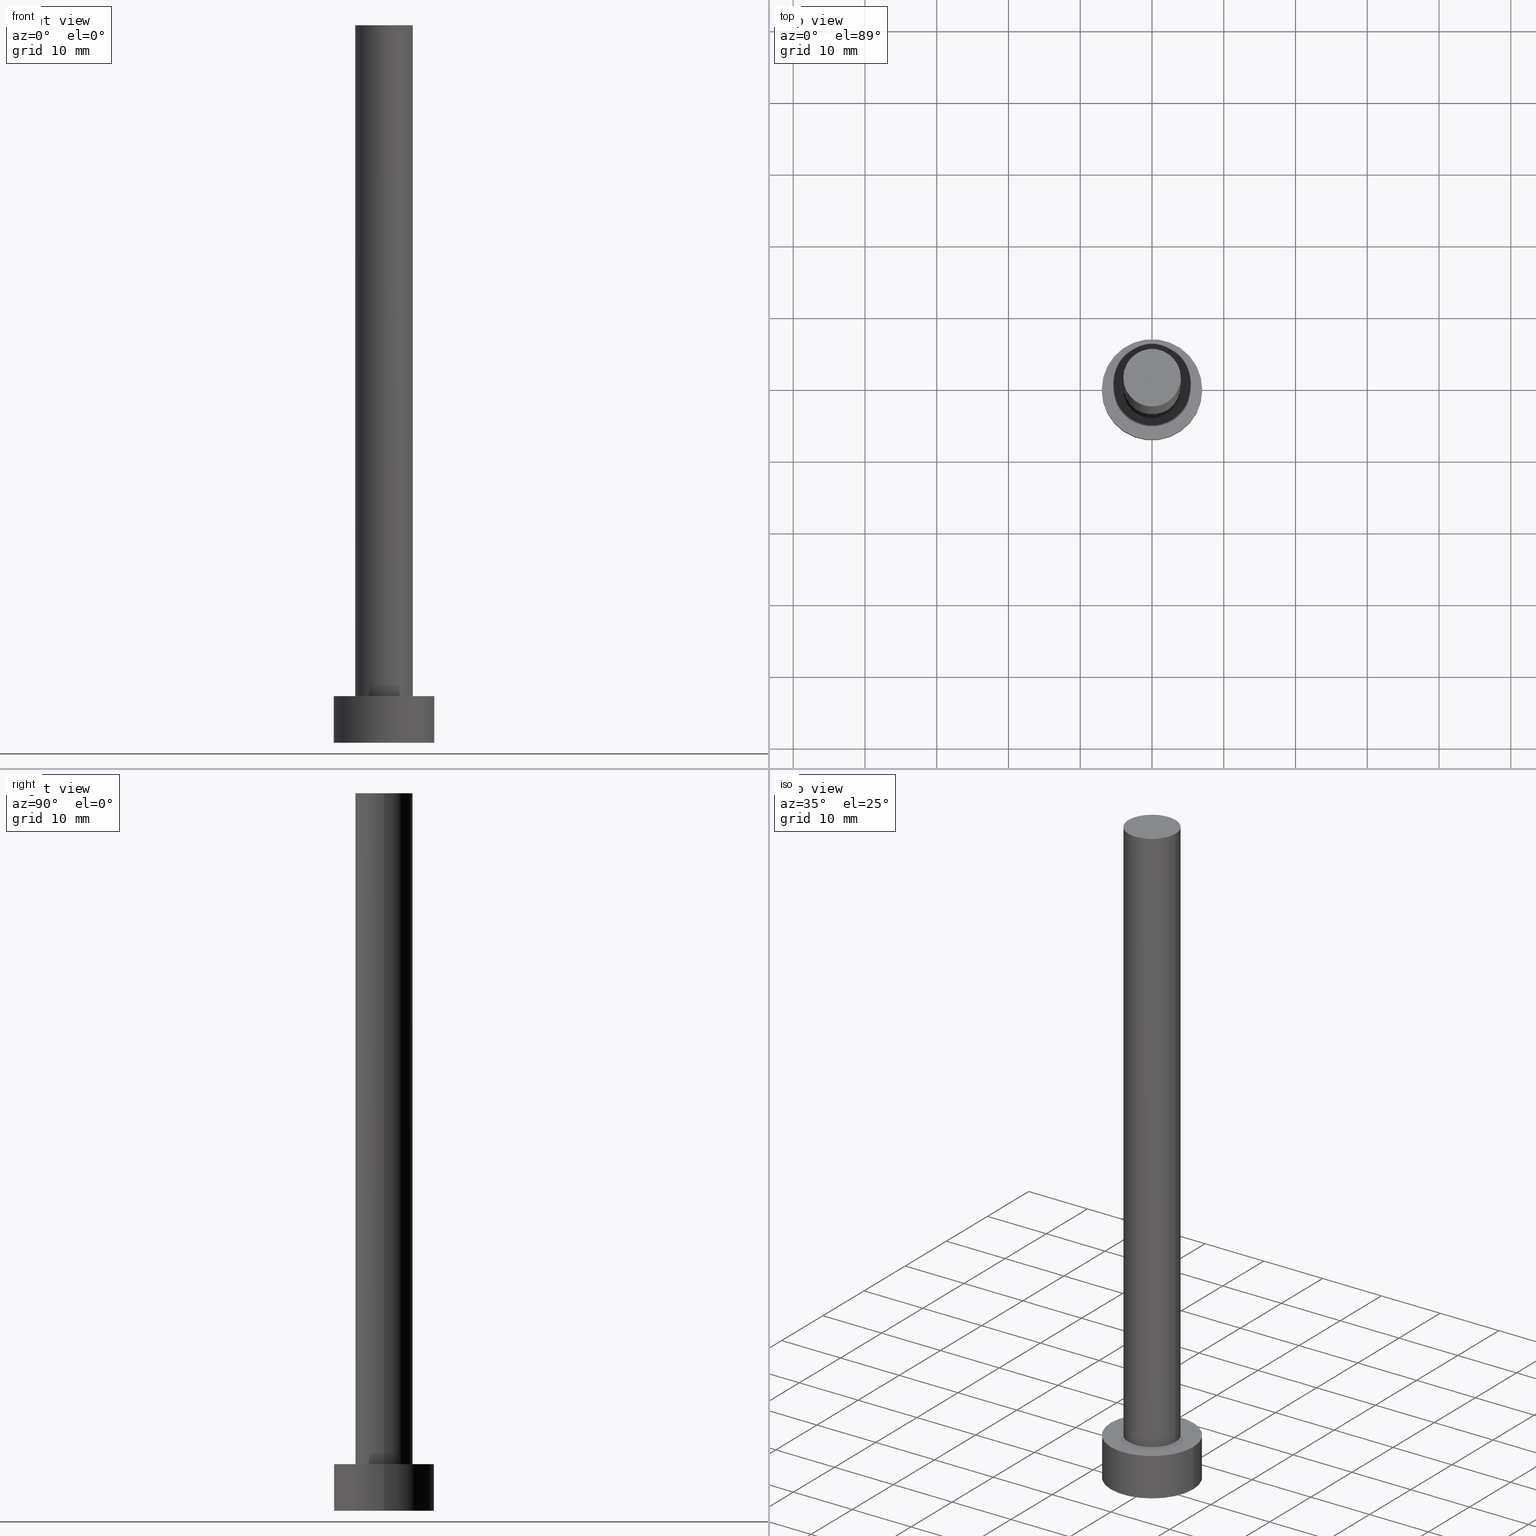
[diagram: canonical four-view strip — front | top / right | iso, engineering-drawing reading convention]
A machine part, canonical four-view strip (front | top / right | iso — engineering-drawing reading convention). The complete STEP part file that produces these views, byte-faithful:
ISO-10303-21;
HEADER;
FILE_DESCRIPTION (( 'STEP AP203' ),
    '1' );
FILE_NAME ('9355.STEP',
    '2023-02-13T14:45:15',
    ( '' ),
    ( '' ),
    'SwSTEP 2.0',
    'SolidWorks 2019',
    '' );
FILE_SCHEMA (( 'CONFIG_CONTROL_DESIGN' ));
ENDSEC;

DATA;
#1 = LOCAL_TIME ( 15, 45, 15.00000000000000000, #176 ) ;
#2 = CALENDAR_DATE ( 2023, 13, 2 ) ;
#3 = EDGE_LOOP ( 'NONE', ( #103, #54 ) ) ;
#4 =( NAMED_UNIT ( * ) SI_UNIT ( $, .STERADIAN. ) SOLID_ANGLE_UNIT ( ) );
#5 = PRODUCT ( '9355', '9355', '', ( #130 ) ) ;
#6 = ORIENTED_EDGE ( 'NONE', *, *, #198, .T. ) ;
#7 = APPROVAL ( #65, 'NEUR�EN�' ) ;
#8 = PERSON_AND_ORGANIZATION ( #70, #17 ) ;
#9 = DIRECTION ( 'NONE',  ( -0.000000000000000000, -0.000000000000000000, -1.000000000000000000 ) ) ;
#10 = ORIENTED_EDGE ( 'NONE', *, *, #61, .F. ) ;
#11 = APPROVAL_PERSON_ORGANIZATION ( #8, #204, #94 ) ;
#12 = ORIENTED_EDGE ( 'NONE', *, *, #61, .T. ) ;
#13 = CC_DESIGN_PERSON_AND_ORGANIZATION_ASSIGNMENT ( #143, #109, ( #111 ) ) ;
#14 = PERSON_AND_ORGANIZATION ( #70, #17 ) ;
#15 = CARTESIAN_POINT ( 'NONE',  ( 0.000000000000000000, 0.000000000000000000, 100.0000000000000000 ) ) ;
#16 = CC_DESIGN_PERSON_AND_ORGANIZATION_ASSIGNMENT ( #159, #236, ( #212 ) ) ;
#17 = ORGANIZATION ( 'NEUR�EN�', 'NEUR�EN�', '' ) ;
#18 = APPROVAL_ROLE ( '' ) ;
#19 = CARTESIAN_POINT ( 'NONE',  ( 4.000000000000000000, 4.898587196589412829E-16, 100.0000000000000000 ) ) ;
#20 = APPROVAL_DATE_TIME ( #116, #229 ) ;
#21 = FACE_OUTER_BOUND ( 'NONE', #105, .T. ) ;
#22 = VECTOR ( 'NONE', #115, 1000.000000000000000 ) ;
#23 = CIRCLE ( 'NONE', #126, 7.000000000000000000 ) ;
#24 = PERSON_AND_ORGANIZATION ( #70, #17 ) ;
#25 = CYLINDRICAL_SURFACE ( 'NONE', #138, 7.000000000000000000 ) ;
#26 = APPLICATION_CONTEXT ( 'configuration controlled 3d designs of mechanical parts and assemblies' ) ;
#27 = CIRCLE ( 'NONE', #175, 4.000000000000000000 ) ;
#28 = CARTESIAN_POINT ( 'NONE',  ( -4.000000000000000000, 0.000000000000000000, 100.0000000000000000 ) ) ;
#29 = DIRECTION ( 'NONE',  ( 0.000000000000000000, 0.000000000000000000, 1.000000000000000000 ) ) ;
#30 = DIRECTION ( 'NONE',  ( 0.000000000000000000, 0.000000000000000000, 1.000000000000000000 ) ) ;
#31 = CIRCLE ( 'NONE', #243, 7.000000000000000000 ) ;
#32 = CC_DESIGN_PERSON_AND_ORGANIZATION_ASSIGNMENT ( #185, #254, ( #212 ) ) ;
#33 = FACE_OUTER_BOUND ( 'NONE', #173, .T. ) ;
#34 = CALENDAR_DATE ( 2023, 13, 2 ) ;
#35 = EDGE_LOOP ( 'NONE', ( #141, #245 ) ) ;
#36 = PERSON_AND_ORGANIZATION ( #70, #17 ) ;
#37 = CYLINDRICAL_SURFACE ( 'NONE', #95, 7.000000000000000000 ) ;
#38 = LINE ( 'NONE', #102, #92 ) ;
#39 = VECTOR ( 'NONE', #9, 1000.000000000000000 ) ;
#40 = DIRECTION ( 'NONE',  ( 0.000000000000000000, 0.000000000000000000, 1.000000000000000000 ) ) ;
#41 = ORIENTED_EDGE ( 'NONE', *, *, #240, .F. ) ;
#42 =( GEOMETRIC_REPRESENTATION_CONTEXT ( 3 ) GLOBAL_UNCERTAINTY_ASSIGNED_CONTEXT ( ( #64 ) ) GLOBAL_UNIT_ASSIGNED_CONTEXT ( ( #172, #174, #4 ) ) REPRESENTATION_CONTEXT ( 'NONE', 'WORKASPACE' ) );
#43 = VERTEX_POINT ( 'NONE', #161 ) ;
#44 = ORIENTED_EDGE ( 'NONE', *, *, #46, .T. ) ;
#45 = ORIENTED_EDGE ( 'NONE', *, *, #240, .T. ) ;
#46 = EDGE_CURVE ( 'NONE', #89, #43, #248, .T. ) ;
#47 = ORIENTED_EDGE ( 'NONE', *, *, #46, .F. ) ;
#48 = APPLICATION_CONTEXT ( 'configuration controlled 3d designs of mechanical parts and assemblies' ) ;
#49 = DIRECTION ( 'NONE',  ( -1.000000000000000000, 0.000000000000000000, 0.000000000000000000 ) ) ;
#50 = CARTESIAN_POINT ( 'NONE',  ( 0.000000000000000000, 0.000000000000000000, 0.000000000000000000 ) ) ;
#51 = DIRECTION ( 'NONE',  ( 0.000000000000000000, 0.000000000000000000, 1.000000000000000000 ) ) ;
#52 = AXIS2_PLACEMENT_3D ( 'NONE', #253, #239, #59 ) ;
#53 = SECURITY_CLASSIFICATION_LEVEL ( 'unclassified' ) ;
#54 = ORIENTED_EDGE ( 'NONE', *, *, #120, .F. ) ;
#55 = DIRECTION ( 'NONE',  ( 1.000000000000000000, 0.000000000000000000, 0.000000000000000000 ) ) ;
#56 = FACE_BOUND ( 'NONE', #35, .T. ) ;
#57 = DIRECTION ( 'NONE',  ( -1.000000000000000000, 0.000000000000000000, 0.000000000000000000 ) ) ;
#58 = CC_DESIGN_PERSON_AND_ORGANIZATION_ASSIGNMENT ( #14, #139, ( #160 ) ) ;
#59 = DIRECTION ( 'NONE',  ( 1.000000000000000000, 0.000000000000000000, -0.000000000000000000 ) ) ;
#60 = DIRECTION ( 'NONE',  ( 0.000000000000000000, 0.000000000000000000, 1.000000000000000000 ) ) ;
#61 = EDGE_CURVE ( 'NONE', #153, #89, #247, .T. ) ;
#62 = APPROVAL_DATE_TIME ( #171, #7 ) ;
#63 = AXIS2_PLACEMENT_3D ( 'NONE', #156, #30, #133 ) ;
#64 = UNCERTAINTY_MEASURE_WITH_UNIT (LENGTH_MEASURE( 1.000000000000000082E-05 ), #172, 'distance_accuracy_value', 'NONE');
#65 = APPROVAL_STATUS ( 'not_yet_approved' ) ;
#66 = DIRECTION ( 'NONE',  ( 1.000000000000000000, 0.000000000000000000, 0.000000000000000000 ) ) ;
#67 = EDGE_LOOP ( 'NONE', ( #215, #131, #129, #108 ) ) ;
#68 = AXIS2_PLACEMENT_3D ( 'NONE', #78, #255, #55 ) ;
#69 = CALENDAR_DATE ( 2023, 13, 2 ) ;
#70 = PERSON ( 'NEUR�EN�', 'NEUR�EN�', 'NEUR�EN�', ('NEUR�EN�'), ('NEUR�EN�'), ('NEUR�EN�') ) ;
#71 = DIRECTION ( 'NONE',  ( 1.000000000000000000, 0.000000000000000000, 0.000000000000000000 ) ) ;
#72 = APPLICATION_PROTOCOL_DEFINITION ( 'international standard', 'config_control_design', 1994, #26 ) ;
#73 = EDGE_CURVE ( 'NONE', #136, #43, #27, .T. ) ;
#74 = CARTESIAN_POINT ( 'NONE',  ( 0.000000000000000000, 0.000000000000000000, 0.000000000000000000 ) ) ;
#75 = CARTESIAN_POINT ( 'NONE',  ( 0.000000000000000000, 0.000000000000000000, 100.0000000000000000 ) ) ;
#76 = CARTESIAN_POINT ( 'NONE',  ( -7.000000000000000000, 0.000000000000000000, 6.500000000000000000 ) ) ;
#77 = COORDINATED_UNIVERSAL_TIME_OFFSET ( 1, 0, .AHEAD. ) ;
#78 = CARTESIAN_POINT ( 'NONE',  ( 0.000000000000000000, 0.000000000000000000, 6.500000000000000000 ) ) ;
#79 = CYLINDRICAL_SURFACE ( 'NONE', #183, 4.000000000000000000 ) ;
#80 = ORIENTED_EDGE ( 'NONE', *, *, #73, .T. ) ;
#81 = PLANE ( 'NONE',  #52 ) ;
#82 = DIRECTION ( 'NONE',  ( -1.000000000000000000, 0.000000000000000000, 0.000000000000000000 ) ) ;
#83 = CARTESIAN_POINT ( 'NONE',  ( 7.000000000000000000, 8.572527594031471218E-16, 6.500000000000000000 ) ) ;
#84 = CARTESIAN_POINT ( 'NONE',  ( 0.000000000000000000, 0.000000000000000000, 6.500000000000000000 ) ) ;
#85 = EDGE_CURVE ( 'NONE', #178, #154, #31, .T. ) ;
#86 = ADVANCED_BREP_SHAPE_REPRESENTATION ( '9355', ( #122, #170 ), #42 ) ;
#87 = DESIGN_CONTEXT ( 'detailed design', #48, 'design' ) ;
#88 = CC_DESIGN_APPROVAL ( #229, ( #212 ) ) ;
#89 = VERTEX_POINT ( 'NONE', #28 ) ;
#90 = EDGE_CURVE ( 'NONE', #154, #242, #38, .T. ) ;
#91 = DIRECTION ( 'NONE',  ( 1.000000000000000000, 0.000000000000000000, 0.000000000000000000 ) ) ;
#92 = VECTOR ( 'NONE', #227, 1000.000000000000000 ) ;
#93 = ORIENTED_EDGE ( 'NONE', *, *, #235, .F. ) ;
#94 = APPROVAL_ROLE ( '' ) ;
#95 = AXIS2_PLACEMENT_3D ( 'NONE', #142, #113, #57 ) ;
#96 = CARTESIAN_POINT ( 'NONE',  ( 0.000000000000000000, 0.000000000000000000, 0.000000000000000000 ) ) ;
#97 = CYLINDRICAL_SURFACE ( 'NONE', #189, 4.000000000000000000 ) ;
#98 = EDGE_CURVE ( 'NONE', #89, #153, #124, .T. ) ;
#99 = LOCAL_TIME ( 15, 45, 15.00000000000000000, #179 ) ;
#100 = CARTESIAN_POINT ( 'NONE',  ( 0.000000000000000000, 0.000000000000000000, 6.500000000000000000 ) ) ;
#101 = ORIENTED_EDGE ( 'NONE', *, *, #90, .T. ) ;
#102 = CARTESIAN_POINT ( 'NONE',  ( -7.000000000000000000, 0.000000000000000000, 6.500000000000000000 ) ) ;
#103 = ORIENTED_EDGE ( 'NONE', *, *, #233, .F. ) ;
#104 = APPROVAL_STATUS ( 'not_yet_approved' ) ;
#105 = EDGE_LOOP ( 'NONE', ( #45, #181 ) ) ;
#106 = ADVANCED_FACE ( 'NONE', ( #205 ), #25, .T. ) ;
#107 = PERSON_AND_ORGANIZATION_ROLE ( 'design_owner' ) ;
#108 = ORIENTED_EDGE ( 'NONE', *, *, #90, .F. ) ;
#109 = PERSON_AND_ORGANIZATION_ROLE ( 'creator' ) ;
#110 = AXIS2_PLACEMENT_3D ( 'NONE', #84, #221, #121 ) ;
#111 = PRODUCT_DEFINITION ( 'NEZN�M�', '', #212, #87 ) ;
#112 = CARTESIAN_POINT ( 'NONE',  ( 0.000000000000000000, 0.000000000000000000, 100.0000000000000000 ) ) ;
#113 = DIRECTION ( 'NONE',  ( -0.000000000000000000, -0.000000000000000000, -1.000000000000000000 ) ) ;
#114 = ORIENTED_EDGE ( 'NONE', *, *, #98, .F. ) ;
#115 = DIRECTION ( 'NONE',  ( -0.000000000000000000, -0.000000000000000000, -1.000000000000000000 ) ) ;
#116 = DATE_AND_TIME ( #197, #224 ) ;
#117 = DIRECTION ( 'NONE',  ( 0.000000000000000000, 0.000000000000000000, 1.000000000000000000 ) ) ;
#118 = APPROVAL_ROLE ( '' ) ;
#119 = DATE_AND_TIME ( #2, #99 ) ;
#120 = EDGE_CURVE ( 'NONE', #230, #242, #192, .T. ) ;
#121 = DIRECTION ( 'NONE',  ( 1.000000000000000000, 0.000000000000000000, 0.000000000000000000 ) ) ;
#122 = MANIFOLD_SOLID_BREP ( 'P�idat vysunut�m3', #249 ) ;
#123 = CARTESIAN_POINT ( 'NONE',  ( 0.000000000000000000, 0.000000000000000000, 6.500000000000000000 ) ) ;
#124 = CIRCLE ( 'NONE', #132, 4.000000000000000000 ) ;
#125 = ORIENTED_EDGE ( 'NONE', *, *, #145, .T. ) ;
#126 = AXIS2_PLACEMENT_3D ( 'NONE', #96, #117, #201 ) ;
#127 = ADVANCED_FACE ( 'NONE', ( #137 ), #135, .F. ) ;
#128 = CARTESIAN_POINT ( 'NONE',  ( 0.000000000000000000, 0.000000000000000000, 100.0000000000000000 ) ) ;
#129 = ORIENTED_EDGE ( 'NONE', *, *, #120, .T. ) ;
#130 = MECHANICAL_CONTEXT ( 'NONE', #26, 'mechanical' ) ;
#131 = ORIENTED_EDGE ( 'NONE', *, *, #235, .T. ) ;
#132 = AXIS2_PLACEMENT_3D ( 'NONE', #128, #210, #91 ) ;
#133 = DIRECTION ( 'NONE',  ( 1.000000000000000000, 0.000000000000000000, 0.000000000000000000 ) ) ;
#134 = ORIENTED_EDGE ( 'NONE', *, *, #98, .T. ) ;
#135 = PLANE ( 'NONE',  #223 ) ;
#136 = VERTEX_POINT ( 'NONE', #211 ) ;
#137 = FACE_OUTER_BOUND ( 'NONE', #3, .T. ) ;
#138 = AXIS2_PLACEMENT_3D ( 'NONE', #100, #187, #49 ) ;
#139 = PERSON_AND_ORGANIZATION_ROLE ( 'classification_officer' ) ;
#140 = LINE ( 'NONE', #180, #194 ) ;
#141 = ORIENTED_EDGE ( 'NONE', *, *, #198, .F. ) ;
#142 = CARTESIAN_POINT ( 'NONE',  ( 0.000000000000000000, 0.000000000000000000, 6.500000000000000000 ) ) ;
#143 = PERSON_AND_ORGANIZATION ( #70, #17 ) ;
#144 = CARTESIAN_POINT ( 'NONE',  ( 7.000000000000000000, 8.572527594031471218E-16, 0.000000000000000000 ) ) ;
#145 = EDGE_CURVE ( 'NONE', #153, #136, #164, .T. ) ;
#146 = APPROVAL_DATE_TIME ( #231, #204 ) ;
#147 = FACE_OUTER_BOUND ( 'NONE', #67, .T. ) ;
#148 = CALENDAR_DATE ( 2023, 13, 2 ) ;
#149 = DIRECTION ( 'NONE',  ( 0.000000000000000000, 0.000000000000000000, 1.000000000000000000 ) ) ;
#150 = CIRCLE ( 'NONE', #68, 4.000000000000000000 ) ;
#151 = DATE_TIME_ROLE ( 'classification_date' ) ;
#152 = DIRECTION ( 'NONE',  ( 1.000000000000000000, 0.000000000000000000, 0.000000000000000000 ) ) ;
#153 = VERTEX_POINT ( 'NONE', #200 ) ;
#154 = VERTEX_POINT ( 'NONE', #76 ) ;
#155 = LOCAL_TIME ( 15, 45, 15.00000000000000000, #169 ) ;
#156 = CARTESIAN_POINT ( 'NONE',  ( 0.000000000000000000, 0.000000000000000000, 0.000000000000000000 ) ) ;
#157 = ORIENTED_EDGE ( 'NONE', *, *, #145, .F. ) ;
#158 = LOCAL_TIME ( 15, 45, 15.00000000000000000, #77 ) ;
#159 = PERSON_AND_ORGANIZATION ( #70, #17 ) ;
#160 = SECURITY_CLASSIFICATION ( '', '', #53 ) ;
#161 = CARTESIAN_POINT ( 'NONE',  ( -4.000000000000000000, 0.000000000000000000, 6.500000000000000000 ) ) ;
#162 = ADVANCED_FACE ( 'NONE', ( #33 ), #97, .T. ) ;
#163 = ORIENTED_EDGE ( 'NONE', *, *, #233, .T. ) ;
#164 = LINE ( 'NONE', #19, #22 ) ;
#165 = COORDINATED_UNIVERSAL_TIME_OFFSET ( 1, 0, .AHEAD. ) ;
#166 = PLANE ( 'NONE',  #251 ) ;
#167 = APPROVAL_PERSON_ORGANIZATION ( #36, #229, #18 ) ;
#168 = CC_DESIGN_APPROVAL ( #204, ( #111 ) ) ;
#169 = COORDINATED_UNIVERSAL_TIME_OFFSET ( 1, 0, .AHEAD. ) ;
#170 = AXIS2_PLACEMENT_3D ( 'NONE', #50, #246, #71 ) ;
#171 = DATE_AND_TIME ( #148, #155 ) ;
#172 =( LENGTH_UNIT ( ) NAMED_UNIT ( * ) SI_UNIT ( .MILLI., .METRE. ) );
#173 = EDGE_LOOP ( 'NONE', ( #157, #114, #44, #6 ) ) ;
#174 =( NAMED_UNIT ( * ) PLANE_ANGLE_UNIT ( ) SI_UNIT ( $, .RADIAN. ) );
#175 = AXIS2_PLACEMENT_3D ( 'NONE', #123, #40, #66 ) ;
#176 = COORDINATED_UNIVERSAL_TIME_OFFSET ( 1, 0, .AHEAD. ) ;
#177 = ADVANCED_FACE ( 'NONE', ( #250 ), #81, .T. ) ;
#178 = VERTEX_POINT ( 'NONE', #83 ) ;
#179 = COORDINATED_UNIVERSAL_TIME_OFFSET ( 1, 0, .AHEAD. ) ;
#180 = CARTESIAN_POINT ( 'NONE',  ( 7.000000000000000000, 8.572527594031471218E-16, 6.500000000000000000 ) ) ;
#181 = ORIENTED_EDGE ( 'NONE', *, *, #85, .T. ) ;
#182 = DIRECTION ( 'NONE',  ( -1.000000000000000000, 0.000000000000000000, 0.000000000000000000 ) ) ;
#183 = AXIS2_PLACEMENT_3D ( 'NONE', #15, #214, #82 ) ;
#184 = DIRECTION ( 'NONE',  ( -0.000000000000000000, -0.000000000000000000, -1.000000000000000000 ) ) ;
#185 = PERSON_AND_ORGANIZATION ( #70, #17 ) ;
#186 = DIRECTION ( 'NONE',  ( -0.000000000000000000, -0.000000000000000000, -1.000000000000000000 ) ) ;
#187 = DIRECTION ( 'NONE',  ( -0.000000000000000000, -0.000000000000000000, -1.000000000000000000 ) ) ;
#188 = CC_DESIGN_APPROVAL ( #7, ( #160 ) ) ;
#189 = AXIS2_PLACEMENT_3D ( 'NONE', #112, #184, #182 ) ;
#190 = PRODUCT_RELATED_PRODUCT_CATEGORY ( 'detail', '', ( #5 ) ) ;
#191 = APPLICATION_PROTOCOL_DEFINITION ( 'international standard', 'config_control_design', 1994, #48 ) ;
#192 = CIRCLE ( 'NONE', #63, 7.000000000000000000 ) ;
#193 = CARTESIAN_POINT ( 'NONE',  ( -4.000000000000000000, 0.000000000000000000, 100.0000000000000000 ) ) ;
#194 = VECTOR ( 'NONE', #186, 1000.000000000000000 ) ;
#195 = DIRECTION ( 'NONE',  ( 1.000000000000000000, 0.000000000000000000, 0.000000000000000000 ) ) ;
#196 = ADVANCED_FACE ( 'NONE', ( #56, #21 ), #166, .T. ) ;
#197 = CALENDAR_DATE ( 2023, 13, 2 ) ;
#198 = EDGE_CURVE ( 'NONE', #43, #136, #150, .T. ) ;
#199 = CC_DESIGN_DATE_AND_TIME_ASSIGNMENT ( #119, #151, ( #160 ) ) ;
#200 = CARTESIAN_POINT ( 'NONE',  ( 4.000000000000000000, 4.898587196589412829E-16, 100.0000000000000000 ) ) ;
#201 = DIRECTION ( 'NONE',  ( 1.000000000000000000, 0.000000000000000000, 0.000000000000000000 ) ) ;
#202 = PRODUCT_DEFINITION_SHAPE ( 'NONE', 'NONE',  #111 ) ;
#203 = APPROVAL_PERSON_ORGANIZATION ( #24, #7, #118 ) ;
#204 = APPROVAL ( #104, 'NEUR�EN�' ) ;
#205 = FACE_OUTER_BOUND ( 'NONE', #208, .T. ) ;
#206 = CARTESIAN_POINT ( 'NONE',  ( -7.000000000000000000, 0.000000000000000000, 0.000000000000000000 ) ) ;
#207 = CARTESIAN_POINT ( 'NONE',  ( 0.000000000000000000, 0.000000000000000000, 6.500000000000000000 ) ) ;
#208 = EDGE_LOOP ( 'NONE', ( #93, #41, #101, #163 ) ) ;
#209 = ADVANCED_FACE ( 'NONE', ( #147 ), #37, .T. ) ;
#210 = DIRECTION ( 'NONE',  ( 0.000000000000000000, 0.000000000000000000, 1.000000000000000000 ) ) ;
#211 = CARTESIAN_POINT ( 'NONE',  ( 4.000000000000000000, 4.898587196589412829E-16, 6.500000000000000000 ) ) ;
#212 = PRODUCT_DEFINITION_FORMATION_WITH_SPECIFIED_SOURCE ( 'LIBOVOLN�', '', #5, .NOT_KNOWN. ) ;
#213 = APPROVAL_STATUS ( 'not_yet_approved' ) ;
#214 = DIRECTION ( 'NONE',  ( -0.000000000000000000, -0.000000000000000000, -1.000000000000000000 ) ) ;
#215 = ORIENTED_EDGE ( 'NONE', *, *, #85, .F. ) ;
#216 = AXIS2_PLACEMENT_3D ( 'NONE', #75, #51, #195 ) ;
#217 = DATE_TIME_ROLE ( 'creation_date' ) ;
#218 = CIRCLE ( 'NONE', #110, 7.000000000000000000 ) ;
#219 = ADVANCED_FACE ( 'NONE', ( #237 ), #79, .T. ) ;
#220 = CARTESIAN_POINT ( 'NONE',  ( 0.000000000000000000, 0.000000000000000000, 6.500000000000000000 ) ) ;
#221 = DIRECTION ( 'NONE',  ( 0.000000000000000000, 0.000000000000000000, 1.000000000000000000 ) ) ;
#222 = CC_DESIGN_DATE_AND_TIME_ASSIGNMENT ( #252, #217, ( #111 ) ) ;
#223 = AXIS2_PLACEMENT_3D ( 'NONE', #74, #29, #234 ) ;
#224 = LOCAL_TIME ( 15, 45, 15.00000000000000000, #165 ) ;
#225 = SHAPE_DEFINITION_REPRESENTATION ( #202, #86 ) ;
#226 = EDGE_LOOP ( 'NONE', ( #134, #12 ) ) ;
#227 = DIRECTION ( 'NONE',  ( -0.000000000000000000, -0.000000000000000000, -1.000000000000000000 ) ) ;
#228 = EDGE_LOOP ( 'NONE', ( #10, #125, #80, #47 ) ) ;
#229 = APPROVAL ( #213, 'NEUR�EN�' ) ;
#230 = VERTEX_POINT ( 'NONE', #144 ) ;
#231 = DATE_AND_TIME ( #69, #1 ) ;
#232 = CC_DESIGN_SECURITY_CLASSIFICATION ( #160, ( #212 ) ) ;
#233 = EDGE_CURVE ( 'NONE', #242, #230, #23, .T. ) ;
#234 = DIRECTION ( 'NONE',  ( 1.000000000000000000, 0.000000000000000000, -0.000000000000000000 ) ) ;
#235 = EDGE_CURVE ( 'NONE', #178, #230, #140, .T. ) ;
#236 = PERSON_AND_ORGANIZATION_ROLE ( 'design_supplier' ) ;
#237 = FACE_OUTER_BOUND ( 'NONE', #228, .T. ) ;
#238 = DIRECTION ( 'NONE',  ( 1.000000000000000000, 0.000000000000000000, -0.000000000000000000 ) ) ;
#239 = DIRECTION ( 'NONE',  ( 0.000000000000000000, 0.000000000000000000, 1.000000000000000000 ) ) ;
#240 = EDGE_CURVE ( 'NONE', #154, #178, #218, .T. ) ;
#241 = CC_DESIGN_PERSON_AND_ORGANIZATION_ASSIGNMENT ( #244, #107, ( #5 ) ) ;
#242 = VERTEX_POINT ( 'NONE', #206 ) ;
#243 = AXIS2_PLACEMENT_3D ( 'NONE', #207, #149, #152 ) ;
#244 = PERSON_AND_ORGANIZATION ( #70, #17 ) ;
#245 = ORIENTED_EDGE ( 'NONE', *, *, #73, .F. ) ;
#246 = DIRECTION ( 'NONE',  ( 0.000000000000000000, 0.000000000000000000, 1.000000000000000000 ) ) ;
#247 = CIRCLE ( 'NONE', #216, 4.000000000000000000 ) ;
#248 = LINE ( 'NONE', #193, #39 ) ;
#249 = CLOSED_SHELL ( 'NONE', ( #219, #209, #106, #196, #127, #162, #177 ) ) ;
#250 = FACE_OUTER_BOUND ( 'NONE', #226, .T. ) ;
#251 = AXIS2_PLACEMENT_3D ( 'NONE', #220, #60, #238 ) ;
#252 = DATE_AND_TIME ( #34, #158 ) ;
#253 = CARTESIAN_POINT ( 'NONE',  ( 0.000000000000000000, 0.000000000000000000, 100.0000000000000000 ) ) ;
#254 = PERSON_AND_ORGANIZATION_ROLE ( 'creator' ) ;
#255 = DIRECTION ( 'NONE',  ( 0.000000000000000000, 0.000000000000000000, 1.000000000000000000 ) ) ;
ENDSEC;
END-ISO-10303-21;
